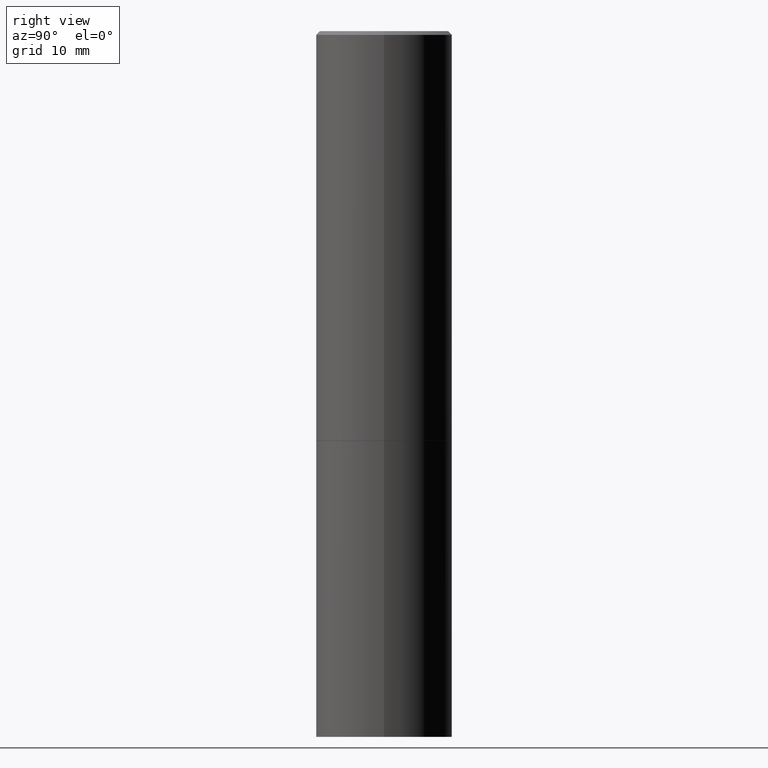
[diagram: clean part render]
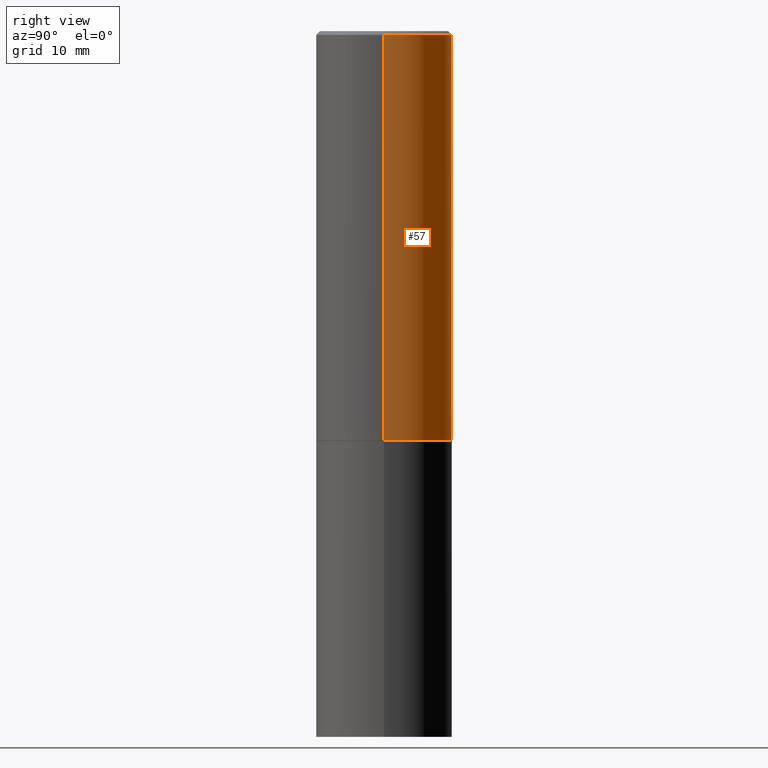
[diagram: same view with one face highlighted and labeled with its STEP entity id]
A machine part, right view. The second image highlights one B-rep face of the part: STEP entity #57.
In plain terms, the highlighted cylindrical surface (partial cylindrical patch) has radius 9.525 mm, axis along (-0, 0, 1).
Its self-contained STEP definition (entity closure, byte-faithful):
#17 = AXIS2_PLACEMENT_3D ( 'NONE', #195, #144, #228 ) ;
#18 = VECTOR ( 'NONE', #37, 39.37007874015748143 ) ;
#33 = ORIENTED_EDGE ( 'NONE', *, *, #75, .T. ) ;
#37 = DIRECTION ( 'NONE',  ( -2.445468806185136877E-29, 3.491481338843145188E-15, 1.000000000000000000 ) ) ;
#52 = ORIENTED_EDGE ( 'NONE', *, *, #173, .T. ) ;
#57 = ADVANCED_FACE ( 'NONE', ( #335 ), #78, .T. ) ;
#68 = ORIENTED_EDGE ( 'NONE', *, *, #240, .F. ) ;
#75 = EDGE_CURVE ( 'NONE', #295, #277, #365, .T. ) ;
#78 = CYLINDRICAL_SURFACE ( 'NONE', #331, 0.3749999999999998890 ) ;
#88 = DIRECTION ( 'NONE',  ( 1.000000000000000000, -6.982962677686266711E-15, 4.876176775795935793E-29 ) ) ;
#90 = EDGE_CURVE ( 'NONE', #283, #133, #268, .T. ) ;
#92 = CARTESIAN_POINT ( 'NONE',  ( 0.000000000000000000, 0.000000000000000000, 0.000000000000000000 ) ) ;
#93 = LINE ( 'NONE', #167, #114 ) ;
#97 = CARTESIAN_POINT ( 'NONE',  ( 0.3749999999999997780, -2.642516375941186056E-15, -0.02000000000000008715 ) ) ;
#104 = EDGE_LOOP ( 'NONE', ( #33, #52, #356, #68 ) ) ;
#114 = VECTOR ( 'NONE', #146, 39.37007874015748143 ) ;
#117 = CARTESIAN_POINT ( 'NONE',  ( 4.890937612370294178E-31, -6.982962677686321191E-17, -0.02000000000000008715 ) ) ;
#133 = VERTEX_POINT ( 'NONE', #288 ) ;
#144 = DIRECTION ( 'NONE',  ( -2.445468806185136597E-29, 3.491481338843145583E-15, 1.000000000000000000 ) ) ;
#146 = DIRECTION ( 'NONE',  ( -2.445468806185136877E-29, 3.491481338843145188E-15, 1.000000000000000000 ) ) ;
#151 = CARTESIAN_POINT ( 'NONE',  ( -0.3750000000000000555, -1.296550319817170517E-15, -2.249000000000000110 ) ) ;
#167 = CARTESIAN_POINT ( 'NONE',  ( -0.3749999999999998890, 2.664535259100374908E-15, -1.844600658845589038E-29 ) ) ;
#173 = EDGE_CURVE ( 'NONE', #277, #133, #93, .T. ) ;
#195 = CARTESIAN_POINT ( 'NONE',  ( 5.499859345110371740E-29, -7.852341531058233864E-15, -2.249000000000000110 ) ) ;
#199 = DIRECTION ( 'NONE',  ( -2.445468806185136597E-29, 3.491481338843145583E-15, 1.000000000000000000 ) ) ;
#205 = CARTESIAN_POINT ( 'NONE',  ( 0.3750000000000000555, -1.047095253519058546E-14, -2.249000000000000110 ) ) ;
#228 = DIRECTION ( 'NONE',  ( 1.000000000000000000, -6.982962677686266711E-15, 0.000000000000000000 ) ) ;
#229 = DIRECTION ( 'NONE',  ( -2.445468806185136597E-29, 3.491481338843145583E-15, 1.000000000000000000 ) ) ;
#240 = EDGE_CURVE ( 'NONE', #295, #283, #316, .T. ) ;
#262 = AXIS2_PLACEMENT_3D ( 'NONE', #117, #229, #346 ) ;
#268 = CIRCLE ( 'NONE', #262, 0.3749999999999997780 ) ;
#277 = VERTEX_POINT ( 'NONE', #151 ) ;
#283 = VERTEX_POINT ( 'NONE', #97 ) ;
#287 = CARTESIAN_POINT ( 'NONE',  ( 0.3749999999999998890, -2.618611004132349228E-15, 1.828566290923475362E-29 ) ) ;
#288 = CARTESIAN_POINT ( 'NONE',  ( -0.3749999999999997780, 2.548781377355484746E-15, -0.02000000000000008715 ) ) ;
#295 = VERTEX_POINT ( 'NONE', #205 ) ;
#316 = LINE ( 'NONE', #287, #18 ) ;
#331 = AXIS2_PLACEMENT_3D ( 'NONE', #92, #199, #88 ) ;
#335 = FACE_OUTER_BOUND ( 'NONE', #104, .T. ) ;
#346 = DIRECTION ( 'NONE',  ( 1.000000000000000000, -6.982962677686265922E-15, 0.000000000000000000 ) ) ;
#356 = ORIENTED_EDGE ( 'NONE', *, *, #90, .F. ) ;
#365 = CIRCLE ( 'NONE', #17, 0.3750000000000000555 ) ;